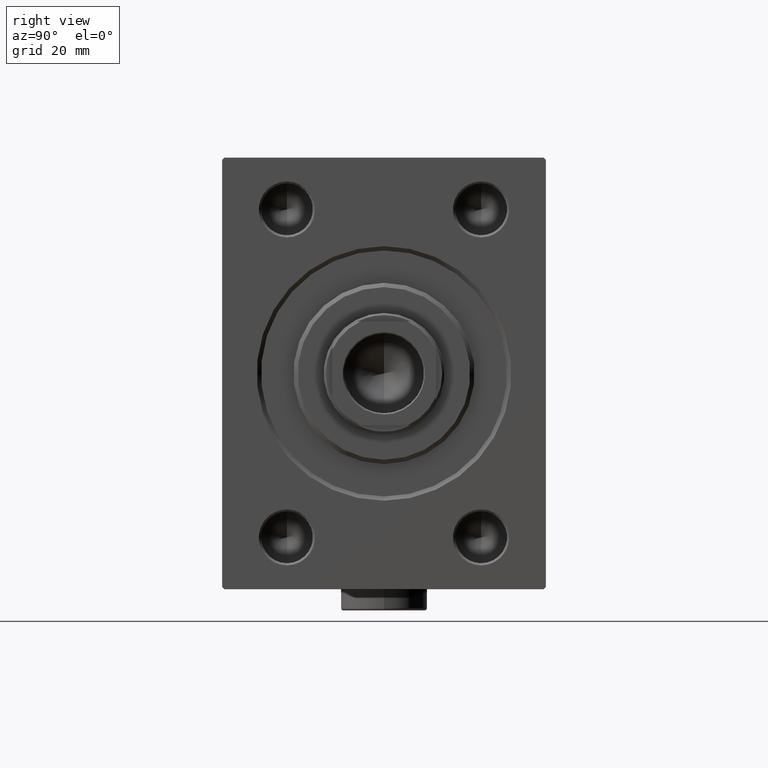
[diagram: clean part render]
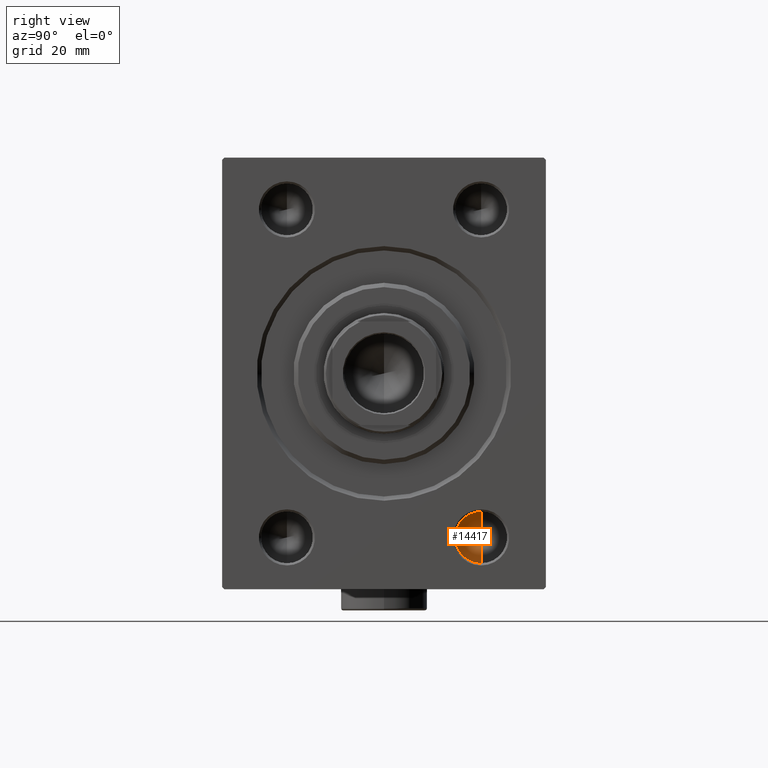
[diagram: same view with one face highlighted and labeled with its STEP entity id]
A machine part, right view. The second image highlights one B-rep face of the part: STEP entity #14417.
In plain terms, the highlighted conical surface has half-angle 59 deg.
Its self-contained STEP definition (entity closure, byte-faithful):
#3243 = LINE ( 'NONE', #21722, #17780 ) ;
#5184 = ORIENTED_EDGE ( 'NONE', *, *, #37143, .T. ) ;
#8270 = DIRECTION ( 'NONE',  ( -0.5150380749100547106, 1.049727191138618326E-16, -0.8571673007021120005 ) ) ;
#8678 = ORIENTED_EDGE ( 'NONE', *, *, #33974, .T. ) ;
#10888 = DIRECTION ( 'NONE',  ( -1.000000000000000000, -0.000000000000000000, -0.000000000000000000 ) ) ;
#11012 = CARTESIAN_POINT ( 'NONE',  ( 20.00000000000000000, 22.49999999999999289, 44.00000000000000000 ) ) ;
#14162 = FACE_OUTER_BOUND ( 'NONE', #33177, .T. ) ;
#14417 = ADVANCED_FACE ( 'NONE', ( #14162 ), #42119, .F. ) ;
#15920 = CARTESIAN_POINT ( 'NONE',  ( 20.00000000000000000, 22.49999999999999289, 32.00000000000000000 ) ) ;
#17780 = VECTOR ( 'NONE', #25456, 1000.000000000000000 ) ;
#18365 = LINE ( 'NONE', #24515, #25281 ) ;
#21722 = CARTESIAN_POINT ( 'NONE',  ( 20.00000000000000000, 22.49999999999999289, 44.00000000000000000 ) ) ;
#21864 = CARTESIAN_POINT ( 'NONE',  ( 23.60516371416536074, 22.49999999999998579, 38.00000000000000000 ) ) ;
#24515 = CARTESIAN_POINT ( 'NONE',  ( 20.00000000000000000, 22.49999999999999289, 32.00000000000000000 ) ) ;
#24544 = VERTEX_POINT ( 'NONE', #21864 ) ;
#24650 = AXIS2_PLACEMENT_3D ( 'NONE', #27355, #34841, #45822 ) ;
#25281 = VECTOR ( 'NONE', #8270, 1000.000000000000000 ) ;
#25456 = DIRECTION ( 'NONE',  ( -0.5150380749100547106, 0.000000000000000000, 0.8571673007021120005 ) ) ;
#26040 = VERTEX_POINT ( 'NONE', #11012 ) ;
#27355 = CARTESIAN_POINT ( 'NONE',  ( 20.00000000000000000, 22.49999999999999289, 38.00000000000000000 ) ) ;
#28663 = DIRECTION ( 'NONE',  ( 0.000000000000000000, 0.000000000000000000, 1.000000000000000000 ) ) ;
#32211 = EDGE_CURVE ( 'NONE', #24544, #26040, #3243, .T. ) ;
#33177 = EDGE_LOOP ( 'NONE', ( #38382, #8678, #5184 ) ) ;
#33974 = EDGE_CURVE ( 'NONE', #24544, #46176, #18365, .T. ) ;
#34841 = DIRECTION ( 'NONE',  ( -1.000000000000000000, -0.000000000000000000, -0.000000000000000000 ) ) ;
#37143 = EDGE_CURVE ( 'NONE', #46176, #26040, #44026, .T. ) ;
#38382 = ORIENTED_EDGE ( 'NONE', *, *, #32211, .F. ) ;
#41335 = AXIS2_PLACEMENT_3D ( 'NONE', #43382, #10888, #28663 ) ;
#42119 = CONICAL_SURFACE ( 'NONE', #41335, 5.999999999999998224, 1.029744258676653867 ) ;
#43382 = CARTESIAN_POINT ( 'NONE',  ( 20.00000000000000000, 22.49999999999999289, 38.00000000000000000 ) ) ;
#44026 = CIRCLE ( 'NONE', #24650, 5.999999999999998224 ) ;
#45822 = DIRECTION ( 'NONE',  ( 0.000000000000000000, 0.000000000000000000, 1.000000000000000000 ) ) ;
#46176 = VERTEX_POINT ( 'NONE', #15920 ) ;